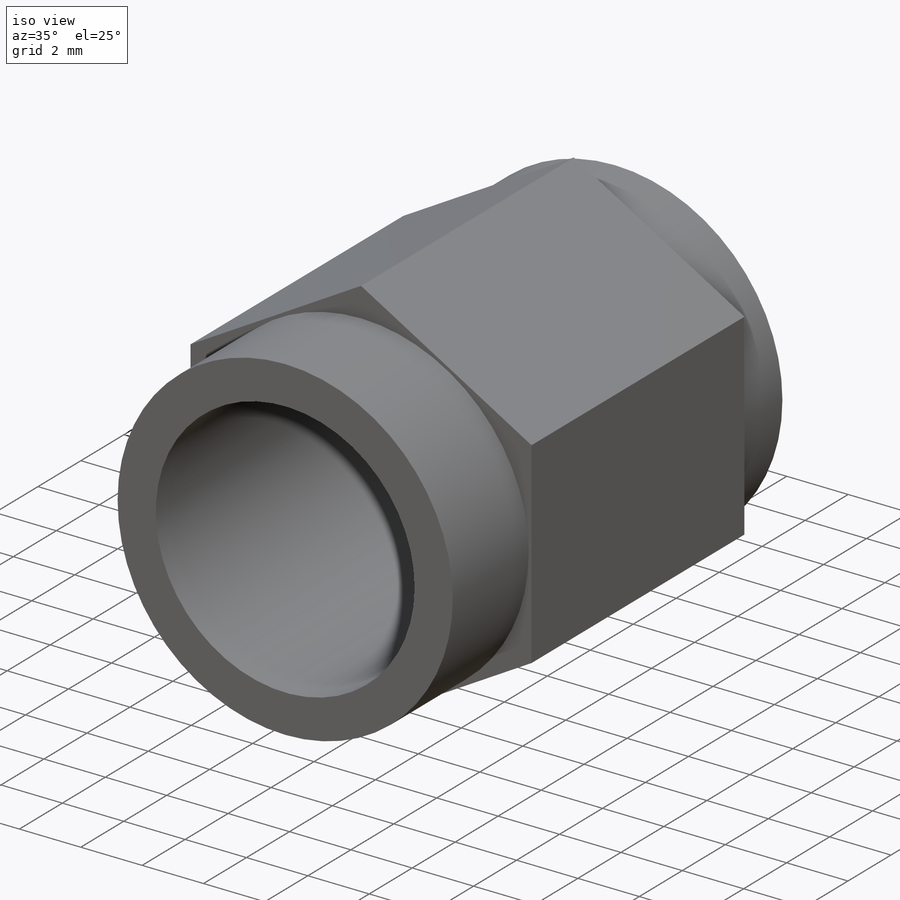
[diagram: iso view]
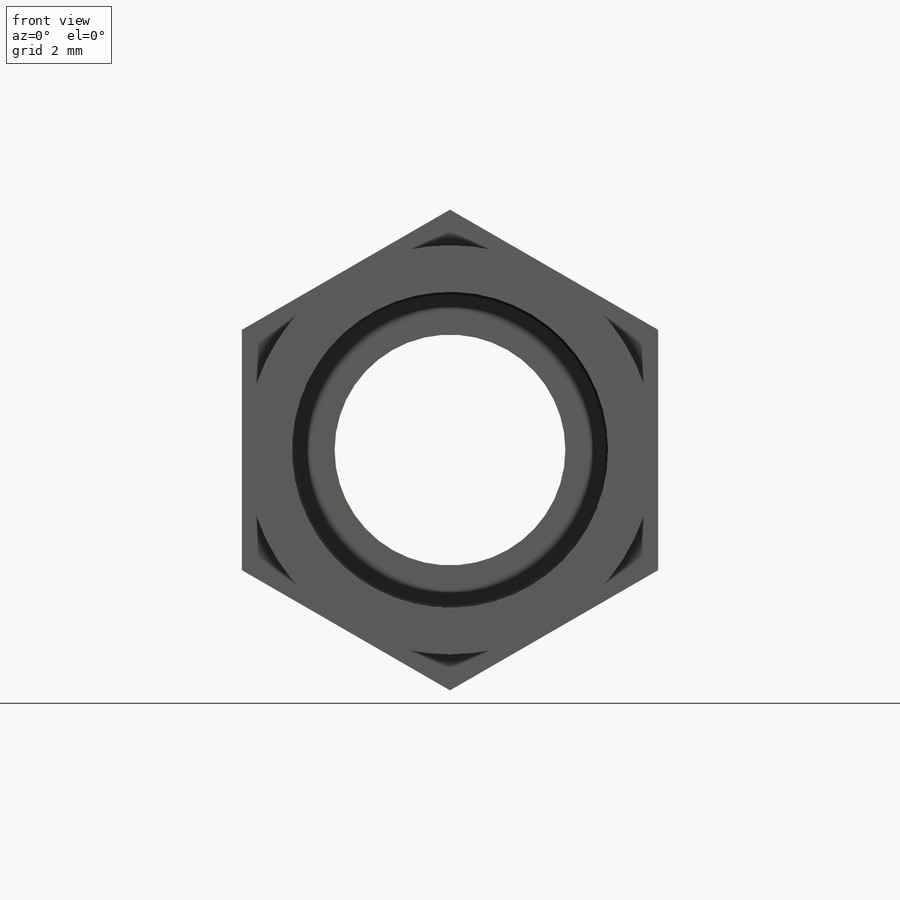
[diagram: front view]
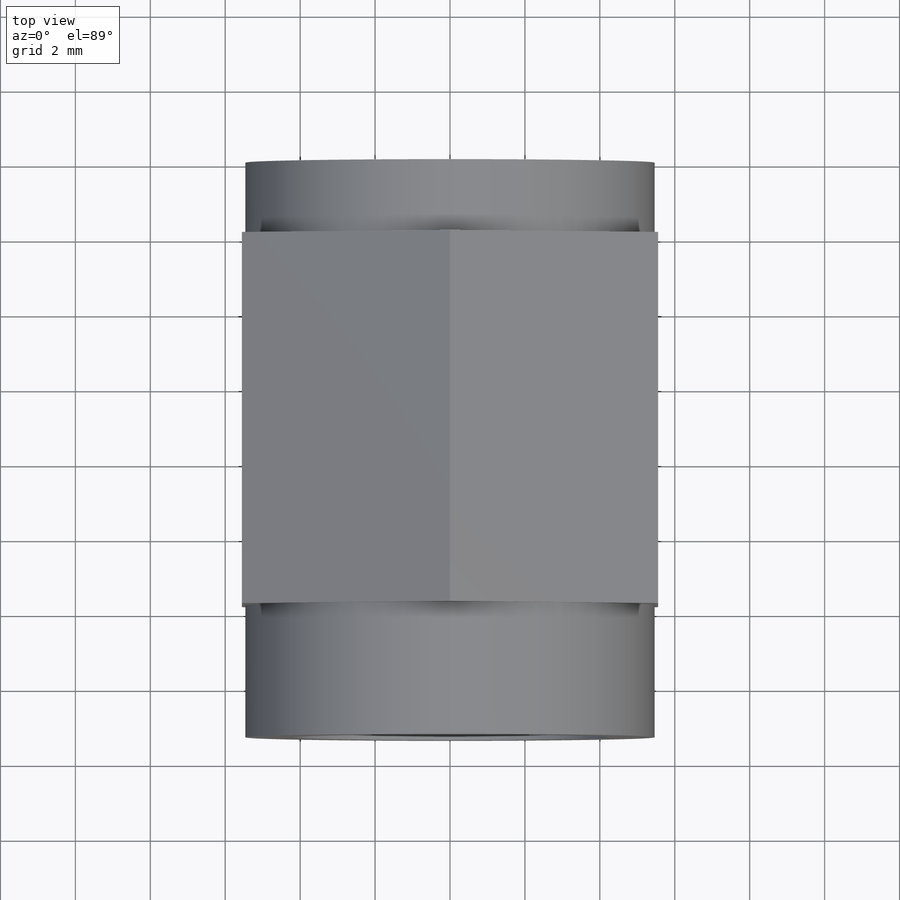
[diagram: top view]
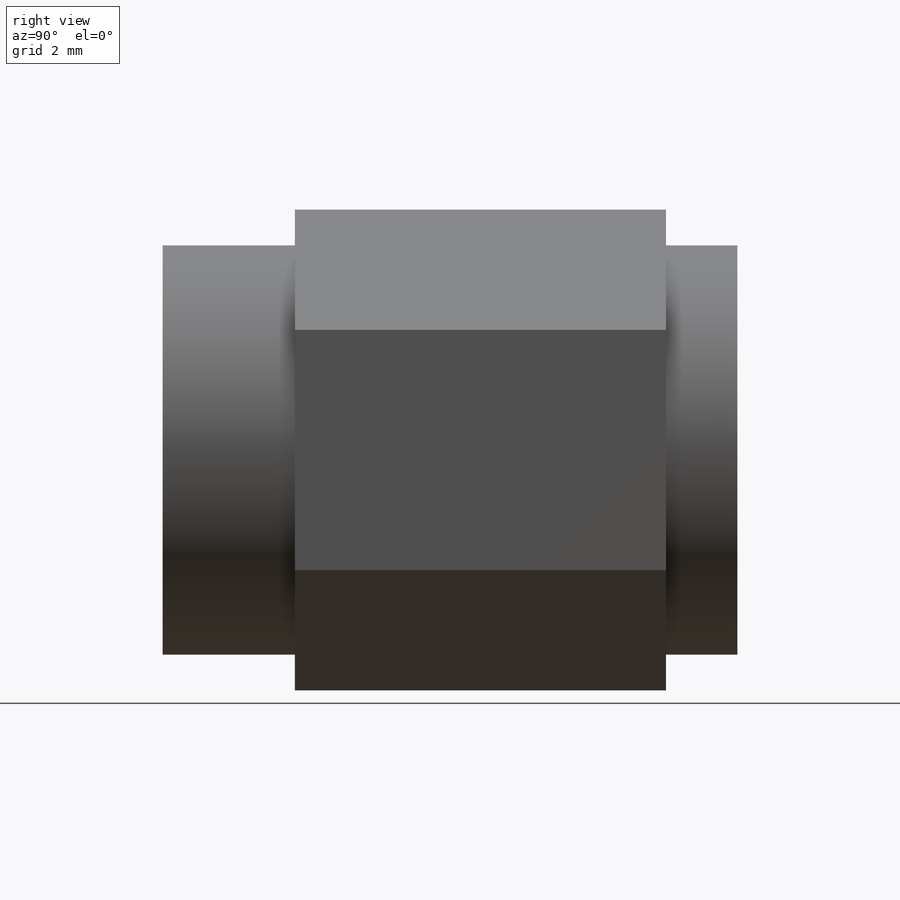
[diagram: right view]
SOLIDWORKS PART (.sldprt)
format: sldprt  version: not decoded by parser v0  size: 236,544 bytes
history: native  units: mm
features: sketch x7, cut_extrude x3, extrude x2, material x1, hole x1, thread x1, plane x1 (+11 scaffold rows collapsed)
feature tree (27):
  scaffold x11  (default folders/planes/origin — collapsed)
  material  "3003 Alloy"
  sketch  "Sketch1"  dims[D1=11.1125mm]
  extrude  "Boss-Extrude1"  Depth=11.811mm
  sketch  "Sketch5"  dims[D1=10.922mm]
  extrude  "Boss-Extrude3"  Depth=3.5306mm
  hole  "3/8-24 Tapped Hole2"  Diameter=8.4328mm Depth=12.065mm
  sketch  "Sketch8"
  sketch  "Sketch7"  dims[hole-wizard template sketch: 46 standard entries collapsed; hole parameters kept: c15.Tap Drill Dia.=8.4328mm c15.Tap Drill Depth=12.065mm c15.D3=~14.816244mm c15.Drill Angle=118.0deg]
  thread  "Hole Thread2"  Diameter=12.065mm  [1 undecoded]
  sketch  "Sketch9"  dims[D1=6.1595mm]
  cut_extrude  "Cut-Extrude1"  [1 undecoded]
  plane  "Plane1"  Offset=9.525mm
  sketch  "Sketch10"  dims[D1=8.3058mm]
  cut_extrude  "Cut-Extrude2"  Depth=4.445mm
  sketch  "Sketch11"  dims[D1=10.922mm]
  cut_extrude  "Cut-Extrude3"  Depth=1.905mm
decode coverage: 12 of 14 modeling features carry decoded parameters
note: ~ marks probable driven/reference dimensions
note: 2 parameter values undecoded
note: suppression state not decoded; provenance and decode notes live in map.json
